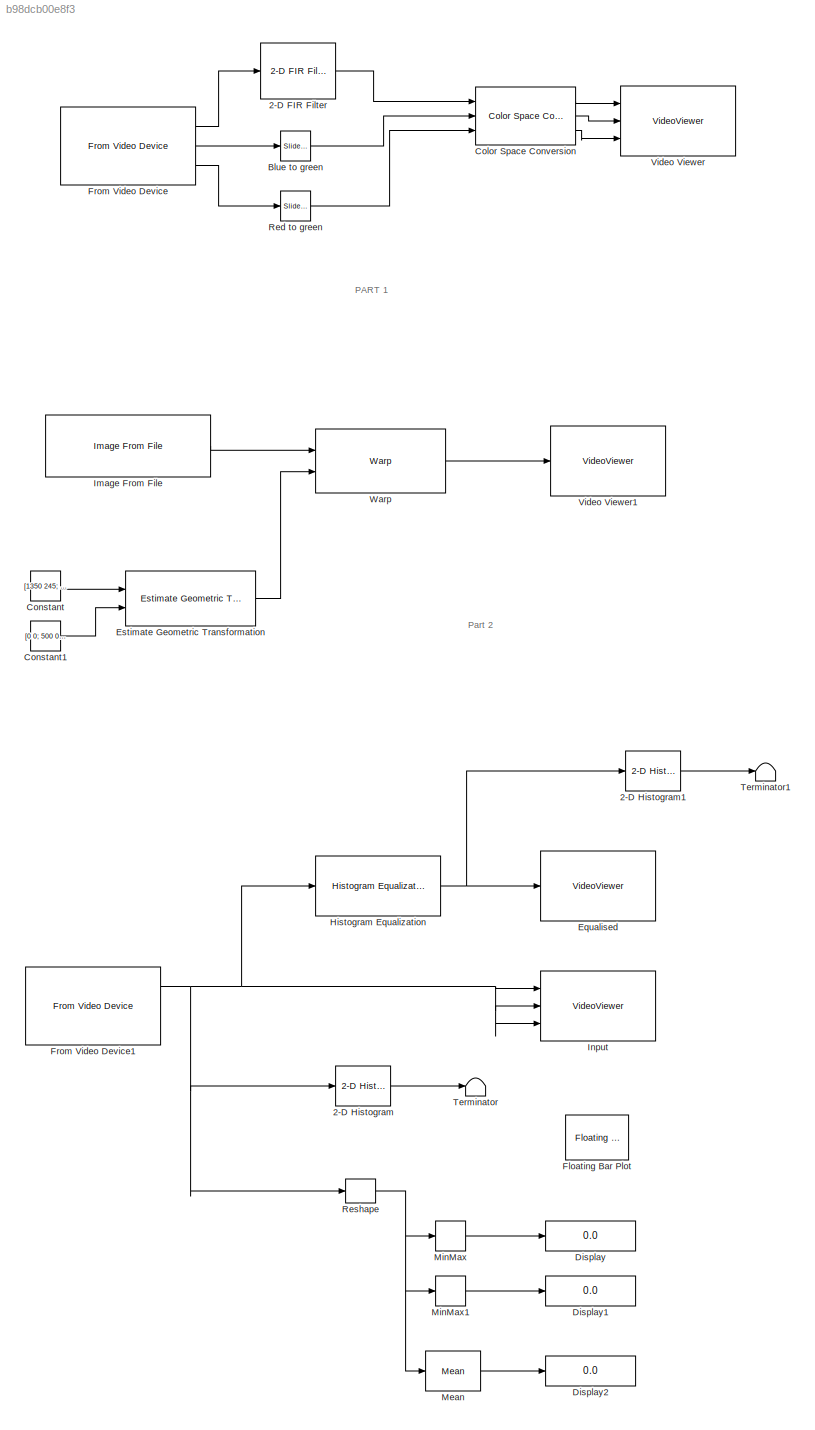
MODEL slx_b98dcb00e8f3
KIND model
CONFIG AbsTol = auto
CONFIG EnableMultiTasking = off
CONFIG FixedStep = auto
CONFIG MaxStep = auto
CONFIG MinStep = auto
CONFIG RelTol = 1e-3
CONFIG SampleTimeConstraint = Unconstrained
CONFIG SolverName = VariableStepAuto
CONFIG StartTime = 0.0
CONFIG StopTime = 100.0
BLOCK [Reference] 2-D FIR Filter  REF=visionfilter/2-D FIR Filter
  Commented = on
  Ports = [1, 1]
  SourceBlock = visionfilter/2-D FIR Filter
  SourceProductBaseCode = VP
  SourceType = 2-D FIR Filter
BLOCK [Reference] 2-D Histogram  REF=visionstatistics/2-D Histogram
  Ports = [1, 1]
  SourceBlock = visionstatistics/2-D Histogram
  SourceProductBaseCode = VP
  SourceType = 2-D Histogram
  UserDataPersistent = on
BLOCK [Reference] 2-D Histogram1  REF=visionstatistics/2-D Histogram
  Ports = [1, 1]
  SourceBlock = visionstatistics/2-D Histogram
  SourceProductBaseCode = VP
  SourceType = 2-D Histogram
  UserDataPersistent = on
BLOCK [Reference] Blue to green   REF=simulink/Math
Operations/Slider
Gain
  Commented = on
  Ports = [1, 1]
  SourceBlock = simulink/Math\nOperations/Slider\nGain
  SourceProductBaseCode = SL
  SourceType = Slider Gain
BLOCK [Reference] Color Space Conversion  REF=visionconversions/Color Space
 Conversion
  Commented = on
  Ports = [3, 3]
  SourceBlock = visionconversions/Color Space\n Conversion
  SourceProductBaseCode = VP
  SourceType = Color Space Conversion
BLOCK [Constant] Constant
  Commented = on
  Value = [1350 245; 1150 695; 474 422; 812 68]
BLOCK [Constant] Constant1
  Commented = on
  Value = [0 0; 500 0; 500 500; 0 500]
BLOCK [Display] Display
  Decimation = 1
  Ports = [1]
BLOCK [Display] Display1
  Decimation = 1
  Ports = [1]
BLOCK [Display] Display2
  Decimation = 1
  Ports = [1]
BLOCK [VideoViewer] Equalised
  FigPos = [2 517 957 409]
  Ports = [1]
  ScopeSpecificationString = vipscopes.VideoViewerScopeCfg('CurrentConfiguration', extmgr.ConfigurationSet(extmgr.Configuration('Core','General UI',true),extmgr.Configuration('Core','Source UI',true),extmgr.Configuration('Sources','WiredSimulink',true),extmgr.Configuration('Visuals','Video',true),extmgr.Configuration('Tools','Image Navigation Tools',true),extmgr.Configuration('Tools','Image Tool',true),extmgr.Configuration('T...<+73ch>
BLOCK [Reference] Estimate Geometric Transformation  REF=visiongeotforms/Estimate Geometric
Transformation
  Commented = on
  Ports = [2, 1]
  SourceBlock = visiongeotforms/Estimate Geometric\nTransformation
  SourceProductBaseCode = VP
  SourceType = Estimate Geometric Transformation
BLOCK [Reference] Floating Bar Plot  REF=simulink_extras/Additional
Sinks/Floating Bar Plot
  Ports = []
  SourceBlock = simulink_extras/Additional\nSinks/Floating Bar Plot
  SourceProductBaseCode = SL
  SourceType = Floating Bar Plot
BLOCK [Reference] From Video Device  REF=imaqlib/From Video Device
  Commented = on
  Ports = [0, 3]
  SourceBlock = imaqlib/From Video Device
  SourceProductBaseCode = IA
  SourceType = From Video Device
  UserDataPersistent = on
BLOCK [Reference] From Video Device1  REF=imaqlib/From Video Device
  Ports = [0, 3]
  SourceBlock = imaqlib/From Video Device
  SourceProductBaseCode = IA
  SourceType = From Video Device
  UserDataPersistent = on
BLOCK [Reference] Histogram Equalization  REF=visionanalysis/Histogram
Equalization
  Ports = [1, 1]
  SourceBlock = visionanalysis/Histogram\nEqualization
  SourceProductBaseCode = VP
  SourceType = Histogram Equalization
BLOCK [Reference] Image From File  REF=visionsources/Image From File
  Commented = on
  Ports = [0, 1]
  SourceBlock = visionsources/Image From File
  SourceProductBaseCode = VP
  SourceType = Image From File
  Tag = vipblks_nd
BLOCK [VideoViewer] Input
  FigPos = [2 1037 957 409]
  Ports = [3]
  ScopeSpecificationString = vipscopes.VideoViewerScopeCfg('CurrentConfiguration', extmgr.ConfigurationSet(extmgr.Configuration('Core','General UI',true),extmgr.Configuration('Core','Source UI',true),extmgr.Configuration('Sources','WiredSimulink',true),extmgr.Configuration('Visuals','Video',true),extmgr.Configuration('Tools','Image Navigation Tools',true),extmgr.Configuration('Tools','Image Tool',true),extmgr.Configuration('T...<+72ch>
  imagePorts = separate color signals
BLOCK [Reference] Mean  REF=dspstat3/Mean
  Ports = [1, 1]
  SourceBlock = dspstat3/Mean
  SourceProductBaseCode = DS
  SourceType = Mean
  UserDataPersistent = on
BLOCK [MinMax] MinMax
  Ports = [1, 1]
BLOCK [MinMax] MinMax1
  Ports = [1, 1]
BLOCK [Reference] Red to green  REF=simulink/Math
Operations/Slider
Gain
  Commented = on
  Ports = [1, 1]
  SourceBlock = simulink/Math\nOperations/Slider\nGain
  SourceProductBaseCode = SL
  SourceType = Slider Gain
BLOCK [Reshape] Reshape
  Ports = [1, 1]
BLOCK [Terminator] Terminator
BLOCK [Terminator] Terminator1
BLOCK [VideoViewer] Video Viewer
  Commented = on
  FigPos = [2 1037 958 929]
  Ports = [3]
  ScopeSpecificationString = vipscopes.VideoViewerScopeCfg('CurrentConfiguration', extmgr.ConfigurationSet(extmgr.Configuration('Core','General UI',true),extmgr.Configuration('Core','Source UI',true),extmgr.Configuration('Sources','WiredSimulink',true),extmgr.Configuration('Visuals','Video',true),extmgr.Configuration('Tools','Image Navigation Tools',true),extmgr.Configuration('Tools','Image Tool',true),extmgr.Configuration('T...<+72ch>
  imagePorts = separate color signals
BLOCK [VideoViewer] Video Viewer1
  Commented = on
  FigPos = [793 827 781 557]
  Ports = [1]
  ScopeSpecificationString = vipscopes.VideoViewerScopeCfg('CurrentConfiguration', extmgr.ConfigurationSet(extmgr.Configuration('Core','General UI',true),extmgr.Configuration('Core','Source UI',true),extmgr.Configuration('Sources','WiredSimulink',true),extmgr.Configuration('Visuals','Video',true),extmgr.Configuration('Tools','Image Navigation Tools',true,'FitToView',true),extmgr.Configuration('Tools','Image Tool',true),extmgr...<+90ch>
  colormapValue = gray(256)
BLOCK [Reference] Warp  REF=visiongeotforms/Warp
  Commented = on
  Ports = [2, 1]
  SourceBlock = visiongeotforms/Warp
  SourceProductBaseCode = VP
  SourceType = vision.internal.blocks.Warp
ANNOTATION (root): PART 1
ANNOTATION (root): Part 2
LINE 2-D FIR Filter:1 -> Color Space Conversion:1
LINE 2-D Histogram1:1 -> Terminator1:1
LINE 2-D Histogram:1 -> Terminator:1
LINE Blue to green :1 -> Color Space Conversion:2
LINE Color Space Conversion:1 -> Video Viewer:1
LINE Color Space Conversion:2 -> Video Viewer:2
LINE Color Space Conversion:3 -> Video Viewer:3
LINE Constant1:1 -> Estimate Geometric Transformation:2
LINE Constant:1 -> Estimate Geometric Transformation:1
LINE Estimate Geometric Transformation:1 -> Warp:2
NET From Video Device1:1 -> 2-D Histogram:1, Histogram Equalization:1, Input:1, Input:2, Input:3, Reshape:1
LINE From Video Device:1 -> 2-D FIR Filter:1
LINE From Video Device:2 -> Blue to green :1
LINE From Video Device:3 -> Red to green:1
NET Histogram Equalization:1 -> 2-D Histogram1:1, Equalised:1
LINE Image From File:1 -> Warp:1
LINE Mean:1 -> Display2:1
LINE MinMax1:1 -> Display1:1
LINE MinMax:1 -> Display:1
LINE Red to green:1 -> Color Space Conversion:3
NET Reshape:1 -> Mean:1, MinMax1:1, MinMax:1
LINE Warp:1 -> Video Viewer1:1
note: NET lines group one-source signal fan-out (src -> all destinations, sorted); 1:1 wires keep LINE
